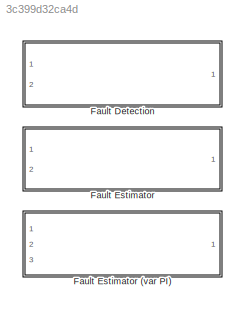
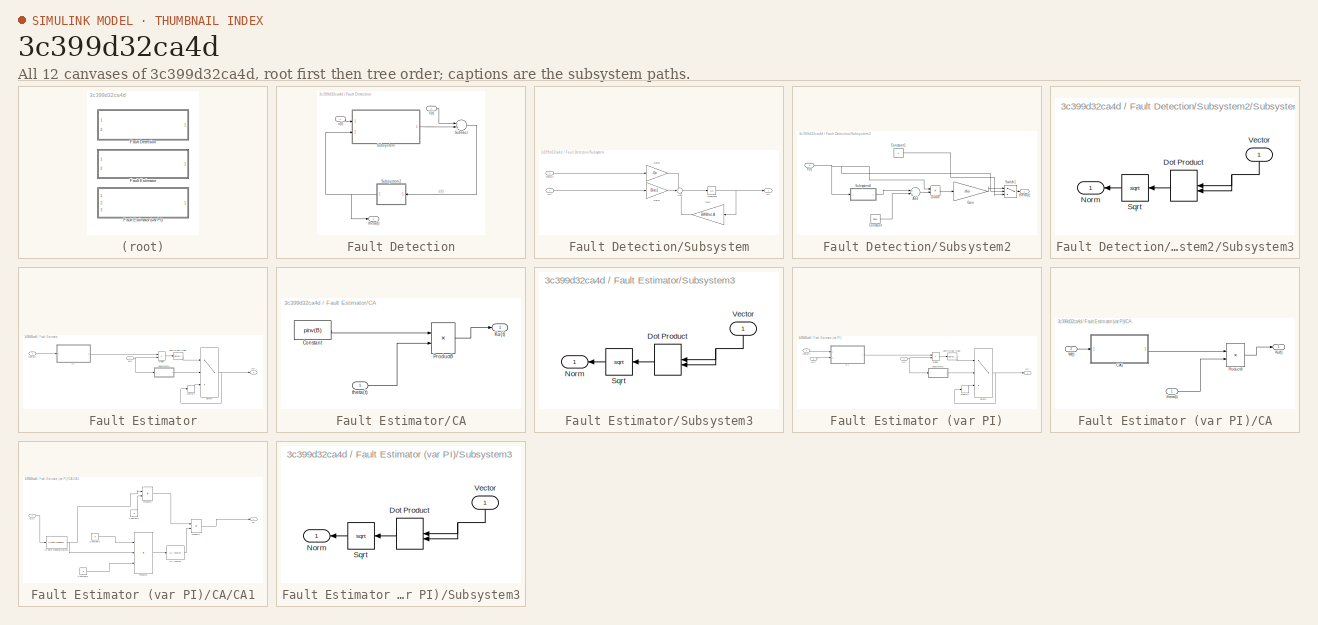
[diagram: thumbnail index - all 12 canvases of the model, root first then tree order]
MODEL slx_3c399d32ca4d
KIND library
CONFIG AbsTol = auto
CONFIG EnableMultiTasking = off
CONFIG FixedStep = auto
CONFIG MaxStep = auto
CONFIG MinStep = auto
CONFIG RelTol = 1e-3
CONFIG SampleTimeConstraint = Unconstrained
CONFIG Solver = VariableStepAuto
CONFIG SolverName = VariableStepAuto
CONFIG StartTime = 0.0
CONFIG StopTime = 10.0
BLOCK [SubSystem] Fault Detection
  Ports = [2, 1]
  RequestExecContextInheritance = off
  Variant = off
BLOCK [SubSystem] Fault Detection/Subsystem
  Ports = [2, 1]
  RequestExecContextInheritance = off
  Variant = off
BLOCK [Gain] Fault Detection/Subsystem/Gain
  Gain = BWBlat.A
  Multiplication = Matrix(K*u) (u vector)
  OutDataTypeStr = Inherit: Inherit via internal rule
  ParamDataTypeStr = Inherit: Inherit via internal rule
  SaturateOnIntegerOverflow = off
BLOCK [Gain] Fault Detection/Subsystem/Gain1
  Gain = Blat1
  Multiplication = Matrix(K*u) (u vector)
  OutDataTypeStr = Inherit: Inherit via internal rule
  ParamDataTypeStr = Inherit: Inherit via internal rule
  SaturateOnIntegerOverflow = off
BLOCK [Gain] Fault Detection/Subsystem/Gain2
  Gain = -Gn
  Multiplication = Matrix(K*u) (u vector)
  OutDataTypeStr = Inherit: Inherit via internal rule
  ParamDataTypeStr = Inherit: Inherit via internal rule
  SaturateOnIntegerOverflow = off
BLOCK [Integrator] Fault Detection/Subsystem/Integrator
  InitialCondition = x0
  Ports = [1, 1]
BLOCK [Sum] Fault Detection/Subsystem/Sum
  IconShape = round
  InputSameDT = off
  Inputs = +++
  OutDataTypeStr = Inherit: Inherit via internal rule
  Ports = [3, 1]
  SaturateOnIntegerOverflow = off
BLOCK [Inport] Fault Detection/Subsystem/theta(t)
  IconDisplay = Port number
  Port = 2
BLOCK [Inport] Fault Detection/Subsystem/u(t)
  IconDisplay = Port number
BLOCK [Outport] Fault Detection/Subsystem/z(t)
  IconDisplay = Port number
BLOCK [SubSystem] Fault Detection/Subsystem2
  Ports = [1, 1]
  RequestExecContextInheritance = off
  Variant = off
BLOCK [Sum] Fault Detection/Subsystem2/Add
  InputSameDT = off
  OutDataTypeStr = Inherit: Inherit via internal rule
  Ports = [2, 1]
  SaturateOnIntegerOverflow = off
BLOCK [Constant] Fault Detection/Subsystem2/Constant
  Value = delta
BLOCK [Constant] Fault Detection/Subsystem2/Constant1
  Value = 0
BLOCK [Product] Fault Detection/Subsystem2/Divide
  InputSameDT = off
  Inputs = */
  OutDataTypeStr = Inherit: Inherit via internal rule
  Ports = [2, 1]
  RndMeth = Floor
  SaturateOnIntegerOverflow = off
BLOCK [Gain] Fault Detection/Subsystem2/Gain
  Gain = -rho
  OutDataTypeStr = Inherit: Inherit via internal rule
  ParamDataTypeStr = Inherit: Inherit via internal rule
  SaturateOnIntegerOverflow = off
BLOCK [SubSystem] Fault Detection/Subsystem2/Subsystem3
  Ports = [1, 1]
  RequestExecContextInheritance = off
  Variant = off
BLOCK [DotProduct] Fault Detection/Subsystem2/Subsystem3/Dot Product
  OutDataTypeStr = Inherit: Inherit via internal rule
BLOCK [Outport] Fault Detection/Subsystem2/Subsystem3/Norm
  IconDisplay = Port number
BLOCK [Sqrt] Fault Detection/Subsystem2/Subsystem3/Sqrt
BLOCK [Inport] Fault Detection/Subsystem2/Subsystem3/Vector
  IconDisplay = Port number
BLOCK [Switch] Fault Detection/Subsystem2/Switch1
  Criteria = u2 > Threshold
  InputSameDT = off
  SaturateOnIntegerOverflow = off
  Threshold = eps
  ZeroCross = off
BLOCK [Inport] Fault Detection/Subsystem2/e(t)
  IconDisplay = Port number
BLOCK [Outport] Fault Detection/Subsystem2/theta(t)
  IconDisplay = Port number
BLOCK [Sum] Fault Detection/Subtract
  InputSameDT = off
  Inputs = -+
  OutDataTypeStr = Inherit: Inherit via internal rule
  Ports = [2, 1]
  SaturateOnIntegerOverflow = off
BLOCK [Outport] Fault Detection/theta(t)
  IconDisplay = Port number
BLOCK [Inport] Fault Detection/u(t)
  IconDisplay = Port number
BLOCK [Inport] Fault Detection/x(t)
  IconDisplay = Port number
  Port = 2
BLOCK [SubSystem] Fault Estimator
  Ports = [2, 1]
  RequestExecContextInheritance = off
  Variant = off
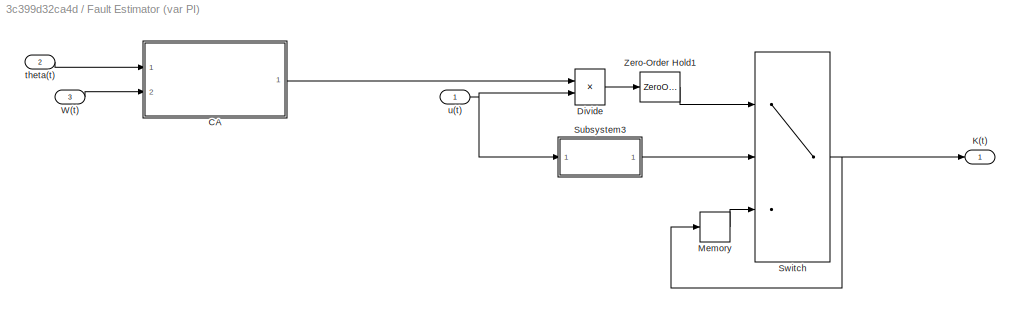
BLOCK [SubSystem] Fault Estimator (var PI)
  Ports = [3, 1]
  RequestExecContextInheritance = off
  Variant = off
BLOCK [SubSystem] Fault Estimator (var PI)/CA
  Ports = [2, 1]
  RequestExecContextInheritance = off
  Variant = off
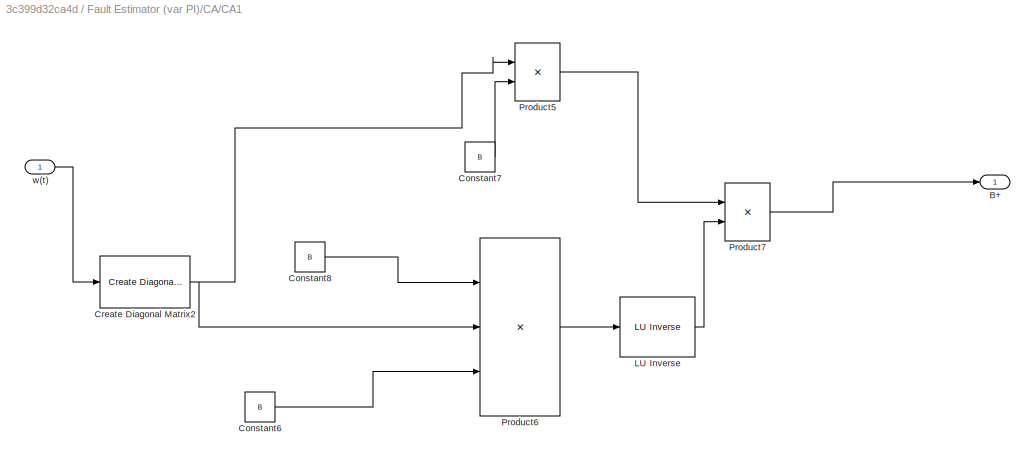
BLOCK [SubSystem] Fault Estimator (var PI)/CA/CA1
  Ports = [1, 1]
  RequestExecContextInheritance = off
  Variant = off
BLOCK [Reference] Fault Estimator (var PI)/CA/CA1/ LU Inverse  REF=dspinverses/ LU Inverse
  Ports = [1, 1]
  SourceBlock = dspinverses/ LU Inverse
  SourceProductBaseCode = DS
  SourceProductName = DSP System Toolbox
  SourceType = LU Inverse
BLOCK [Outport] Fault Estimator (var PI)/CA/CA1/B+ 
  IconDisplay = Port number
BLOCK [Constant] Fault Estimator (var PI)/CA/CA1/Constant6
  Value = B
BLOCK [Constant] Fault Estimator (var PI)/CA/CA1/Constant7
  Value = B
BLOCK [Constant] Fault Estimator (var PI)/CA/CA1/Constant8
  Value = B
BLOCK [Reference] Fault Estimator (var PI)/CA/CA1/Create Diagonal Matrix2  REF=dspmtrx3/Create Diagonal
Matrix
  Ports = [1, 1]
  SourceBlock = dspmtrx3/Create Diagonal\nMatrix
  SourceProductBaseCode = DS
  SourceProductName = DSP System Toolbox
  SourceType = Create Diagonal Matrix
BLOCK [Product] Fault Estimator (var PI)/CA/CA1/Product5
  InputSameDT = off
  Multiplication = Matrix(*)
  OutDataTypeStr = Inherit: Inherit via internal rule
  Ports = [2, 1]
  RndMeth = Floor
  SaturateOnIntegerOverflow = off
BLOCK [Product] Fault Estimator (var PI)/CA/CA1/Product6
  InputSameDT = off
  Inputs = 3
  Multiplication = Matrix(*)
  OutDataTypeStr = Inherit: Inherit via internal rule
  Ports = [3, 1]
  RndMeth = Floor
  SaturateOnIntegerOverflow = off
BLOCK [Product] Fault Estimator (var PI)/CA/CA1/Product7
  InputSameDT = off
  Multiplication = Matrix(*)
  OutDataTypeStr = Inherit: Inherit via internal rule
  Ports = [2, 1]
  RndMeth = Floor
  SaturateOnIntegerOverflow = off
BLOCK [Inport] Fault Estimator (var PI)/CA/CA1/w(t)
  IconDisplay = Port number
BLOCK [Outport] Fault Estimator (var PI)/CA/Ku(t) 
  IconDisplay = Port number
BLOCK [Product] Fault Estimator (var PI)/CA/Product8
  InputSameDT = off
  Multiplication = Matrix(*)
  OutDataTypeStr = Inherit: Inherit via internal rule
  Ports = [2, 1]
  RndMeth = Floor
  SaturateOnIntegerOverflow = off
BLOCK [Inport] Fault Estimator (var PI)/CA/W(t)
  IconDisplay = Port number
  Port = 2
BLOCK [Inport] Fault Estimator (var PI)/CA/theta(t)
  IconDisplay = Port number
BLOCK [Product] Fault Estimator (var PI)/Divide
  InputSameDT = off
  Inputs = */
  OutDataTypeStr = Inherit: Inherit via internal rule
  Ports = [2, 1]
  RndMeth = Floor
  SaturateOnIntegerOverflow = off
BLOCK [Outport] Fault Estimator (var PI)/K(t)
  IconDisplay = Port number
BLOCK [Memory] Fault Estimator (var PI)/Memory
BLOCK [SubSystem] Fault Estimator (var PI)/Subsystem3
  Ports = [1, 1]
  RequestExecContextInheritance = off
  Variant = off
BLOCK [DotProduct] Fault Estimator (var PI)/Subsystem3/Dot Product
  OutDataTypeStr = Inherit: Inherit via internal rule
BLOCK [Outport] Fault Estimator (var PI)/Subsystem3/Norm
  IconDisplay = Port number
BLOCK [Sqrt] Fault Estimator (var PI)/Subsystem3/Sqrt
BLOCK [Inport] Fault Estimator (var PI)/Subsystem3/Vector
  IconDisplay = Port number
BLOCK [Switch] Fault Estimator (var PI)/Switch
  Criteria = u2 > Threshold
  InputSameDT = off
  SaturateOnIntegerOverflow = off
  Threshold = eps
BLOCK [Inport] Fault Estimator (var PI)/W(t)
  IconDisplay = Port number
  Port = 3
BLOCK [ZeroOrderHold] Fault Estimator (var PI)/Zero-Order Hold1
  SampleTime = T
BLOCK [Inport] Fault Estimator (var PI)/theta(t)
  IconDisplay = Port number
  Port = 2
BLOCK [Inport] Fault Estimator (var PI)/u(t)
  IconDisplay = Port number
BLOCK [SubSystem] Fault Estimator/CA
  Ports = [1, 1]
  RequestExecContextInheritance = off
  Variant = off
BLOCK [Constant] Fault Estimator/CA/Constant
  Value = pinv(B)
BLOCK [Outport] Fault Estimator/CA/Ku(t) 
  IconDisplay = Port number
BLOCK [Product] Fault Estimator/CA/Product8
  InputSameDT = off
  Multiplication = Matrix(*)
  OutDataTypeStr = Inherit: Inherit via internal rule
  Ports = [2, 1]
  RndMeth = Floor
  SaturateOnIntegerOverflow = off
BLOCK [Inport] Fault Estimator/CA/theta(t)
  IconDisplay = Port number
BLOCK [Product] Fault Estimator/Divide
  InputSameDT = off
  Inputs = */
  OutDataTypeStr = Inherit: Inherit via internal rule
  Ports = [2, 1]
  RndMeth = Floor
  SaturateOnIntegerOverflow = off
BLOCK [Outport] Fault Estimator/K(t)
  IconDisplay = Port number
BLOCK [Memory] Fault Estimator/Memory
BLOCK [SubSystem] Fault Estimator/Subsystem3
  Ports = [1, 1]
  RequestExecContextInheritance = off
  Variant = off
BLOCK [DotProduct] Fault Estimator/Subsystem3/Dot Product
  OutDataTypeStr = Inherit: Inherit via internal rule
BLOCK [Outport] Fault Estimator/Subsystem3/Norm
  IconDisplay = Port number
BLOCK [Sqrt] Fault Estimator/Subsystem3/Sqrt
BLOCK [Inport] Fault Estimator/Subsystem3/Vector
  IconDisplay = Port number
BLOCK [Switch] Fault Estimator/Switch
  Criteria = u2 > Threshold
  InputSameDT = off
  SaturateOnIntegerOverflow = off
  Threshold = eps
BLOCK [ZeroOrderHold] Fault Estimator/Zero-Order Hold1
  SampleTime = T
BLOCK [Inport] Fault Estimator/theta(t)
  IconDisplay = Port number
  Port = 2
BLOCK [Inport] Fault Estimator/u(t)
  IconDisplay = Port number
LINE Fault Detection/Subsystem/Gain1:1 -> Fault Detection/Subsystem/Sum:2
LINE Fault Detection/Subsystem/Gain2:1 -> Fault Detection/Subsystem/Sum:1
LINE Fault Detection/Subsystem/Gain:1 -> Fault Detection/Subsystem/Sum:3
NET Fault Detection/Subsystem/Integrator:1 -> Fault Detection/Subsystem/Gain:1, Fault Detection/Subsystem/z(t):1
LINE Fault Detection/Subsystem/Sum:1 -> Fault Detection/Subsystem/Integrator:1
LINE Fault Detection/Subsystem/theta(t):1 -> Fault Detection/Subsystem/Gain2:1
LINE Fault Detection/Subsystem/u(t):1 -> Fault Detection/Subsystem/Gain1:1
LINE Fault Detection/Subsystem2/Add:1 -> Fault Detection/Subsystem2/Divide:2
LINE Fault Detection/Subsystem2/Constant1:1 -> Fault Detection/Subsystem2/Switch1:3
LINE Fault Detection/Subsystem2/Constant:1 -> Fault Detection/Subsystem2/Add:2
LINE Fault Detection/Subsystem2/Divide:1 -> Fault Detection/Subsystem2/Gain:1
LINE Fault Detection/Subsystem2/Gain:1 -> Fault Detection/Subsystem2/Switch1:1
LINE Fault Detection/Subsystem2/Subsystem3/Dot Product:1 -> Fault Detection/Subsystem2/Subsystem3/Sqrt:1
LINE Fault Detection/Subsystem2/Subsystem3/Sqrt:1 -> Fault Detection/Subsystem2/Subsystem3/Norm:1
NET Fault Detection/Subsystem2/Subsystem3/Vector:1 -> Fault Detection/Subsystem2/Subsystem3/Dot Product:1, Fault Detection/Subsystem2/Subsystem3/Dot Product:2
LINE Fault Detection/Subsystem2/Subsystem3:1 -> Fault Detection/Subsystem2/Add:1
LINE Fault Detection/Subsystem2/Switch1:1 -> Fault Detection/Subsystem2/theta(t):1
NET Fault Detection/Subsystem2/e(t):1 -> Fault Detection/Subsystem2/Divide:1, Fault Detection/Subsystem2/Subsystem3:1, Fault Detection/Subsystem2/Switch1:2
NET Fault Detection/Subsystem2:1 -> Fault Detection/Subsystem:2, Fault Detection/theta(t):1
LINE Fault Detection/Subsystem:1 -> Fault Detection/Subtract:2
LINE Fault Detection/Subtract:1 -> Fault Detection/Subsystem2:1
LINE Fault Detection/u(t):1 -> Fault Detection/Subsystem:1
LINE Fault Detection/x(t):1 -> Fault Detection/Subtract:1
LINE Fault Estimator (var PI)/CA/CA1/ LU Inverse:1 -> Fault Estimator (var PI)/CA/CA1/Product7:2
LINE Fault Estimator (var PI)/CA/CA1/Constant6:1 -> Fault Estimator (var PI)/CA/CA1/Product6:3
LINE Fault Estimator (var PI)/CA/CA1/Constant7:1 -> Fault Estimator (var PI)/CA/CA1/Product5:2
LINE Fault Estimator (var PI)/CA/CA1/Constant8:1 -> Fault Estimator (var PI)/CA/CA1/Product6:1
NET Fault Estimator (var PI)/CA/CA1/Create Diagonal Matrix2:1 -> Fault Estimator (var PI)/CA/CA1/Product5:1, Fault Estimator (var PI)/CA/CA1/Product6:2
LINE Fault Estimator (var PI)/CA/CA1/Product5:1 -> Fault Estimator (var PI)/CA/CA1/Product7:1
LINE Fault Estimator (var PI)/CA/CA1/Product6:1 -> Fault Estimator (var PI)/CA/CA1/ LU Inverse:1
LINE Fault Estimator (var PI)/CA/CA1/Product7:1 -> Fault Estimator (var PI)/CA/CA1/B+ :1
LINE Fault Estimator (var PI)/CA/CA1/w(t):1 -> Fault Estimator (var PI)/CA/CA1/Create Diagonal Matrix2:1
LINE Fault Estimator (var PI)/CA/CA1:1 -> Fault Estimator (var PI)/CA/Product8:1
LINE Fault Estimator (var PI)/CA/Product8:1 -> Fault Estimator (var PI)/CA/Ku(t) :1
LINE Fault Estimator (var PI)/CA/W(t):1 -> Fault Estimator (var PI)/CA/CA1:1
LINE Fault Estimator (var PI)/CA/theta(t):1 -> Fault Estimator (var PI)/CA/Product8:2
LINE Fault Estimator (var PI)/CA:1 -> Fault Estimator (var PI)/Divide:1
LINE Fault Estimator (var PI)/Divide:1 -> Fault Estimator (var PI)/Zero-Order Hold1:1
LINE Fault Estimator (var PI)/Memory:1 -> Fault Estimator (var PI)/Switch:3
LINE Fault Estimator (var PI)/Subsystem3/Dot Product:1 -> Fault Estimator (var PI)/Subsystem3/Sqrt:1
LINE Fault Estimator (var PI)/Subsystem3/Sqrt:1 -> Fault Estimator (var PI)/Subsystem3/Norm:1
NET Fault Estimator (var PI)/Subsystem3/Vector:1 -> Fault Estimator (var PI)/Subsystem3/Dot Product:1, Fault Estimator (var PI)/Subsystem3/Dot Product:2
LINE Fault Estimator (var PI)/Subsystem3:1 -> Fault Estimator (var PI)/Switch:2
NET Fault Estimator (var PI)/Switch:1 -> Fault Estimator (var PI)/K(t):1, Fault Estimator (var PI)/Memory:1
LINE Fault Estimator (var PI)/W(t):1 -> Fault Estimator (var PI)/CA:2
LINE Fault Estimator (var PI)/Zero-Order Hold1:1 -> Fault Estimator (var PI)/Switch:1
LINE Fault Estimator (var PI)/theta(t):1 -> Fault Estimator (var PI)/CA:1
NET Fault Estimator (var PI)/u(t):1 -> Fault Estimator (var PI)/Divide:2, Fault Estimator (var PI)/Subsystem3:1
LINE Fault Estimator/CA/Constant:1 -> Fault Estimator/CA/Product8:1
LINE Fault Estimator/CA/Product8:1 -> Fault Estimator/CA/Ku(t) :1
LINE Fault Estimator/CA/theta(t):1 -> Fault Estimator/CA/Product8:2
LINE Fault Estimator/CA:1 -> Fault Estimator/Divide:1
LINE Fault Estimator/Divide:1 -> Fault Estimator/Zero-Order Hold1:1
LINE Fault Estimator/Memory:1 -> Fault Estimator/Switch:3
LINE Fault Estimator/Subsystem3/Dot Product:1 -> Fault Estimator/Subsystem3/Sqrt:1
LINE Fault Estimator/Subsystem3/Sqrt:1 -> Fault Estimator/Subsystem3/Norm:1
NET Fault Estimator/Subsystem3/Vector:1 -> Fault Estimator/Subsystem3/Dot Product:1, Fault Estimator/Subsystem3/Dot Product:2
LINE Fault Estimator/Subsystem3:1 -> Fault Estimator/Switch:2
NET Fault Estimator/Switch:1 -> Fault Estimator/K(t):1, Fault Estimator/Memory:1
LINE Fault Estimator/Zero-Order Hold1:1 -> Fault Estimator/Switch:1
LINE Fault Estimator/theta(t):1 -> Fault Estimator/CA:1
NET Fault Estimator/u(t):1 -> Fault Estimator/Divide:2, Fault Estimator/Subsystem3:1
note: NET lines group one-source signal fan-out (src -> all destinations, sorted); 1:1 wires keep LINE
